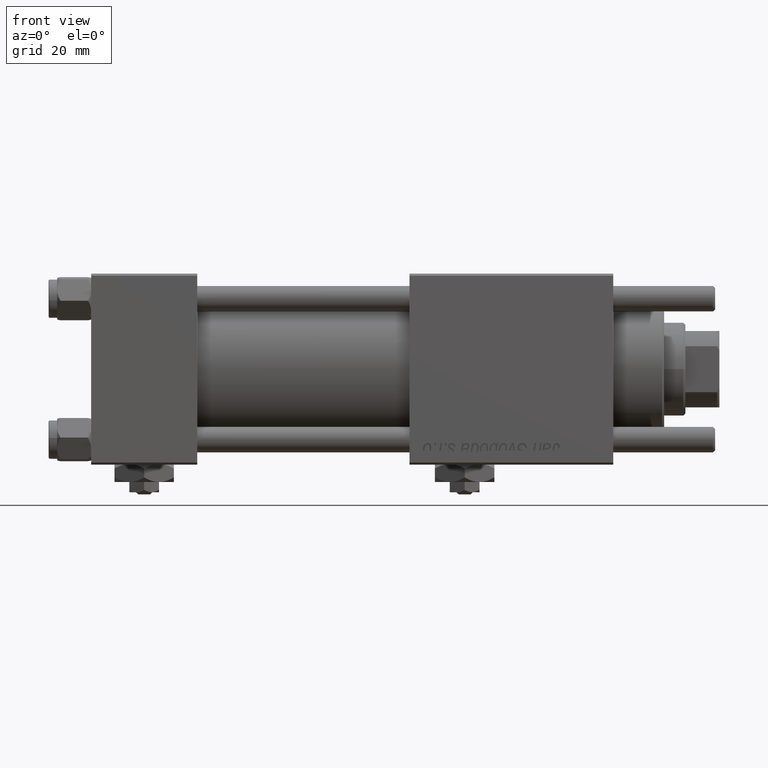
[diagram: clean part render]
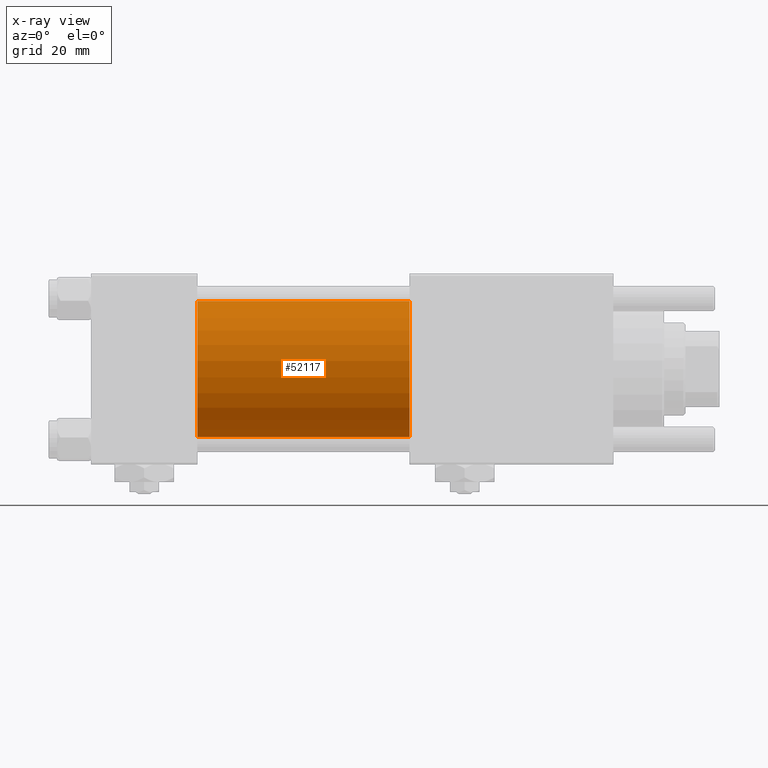
[diagram: x-ray — body ghosted, one internal face saturated and labeled with its STEP entity id]
A machine part, front view, then the same camera in x-ray: the body is ghosted and one INTERNAL B-rep face — a face not visible from any outside direction — is saturated and labeled: STEP entity #52117.
In plain terms, the highlighted cylindrical surface (partial cylindrical patch) has radius 16 mm, axis along (-1, -0, -0).
Its self-contained STEP definition (entity closure, byte-faithful):
#2243 = ORIENTED_EDGE ( 'NONE', *, *, #44510, .F. ) ;
#3121 = CARTESIAN_POINT ( 'NONE',  ( 25.00000000000000000, -2.602085213965210642E-15, 0.000000000000000000 ) ) ;
#4327 = CARTESIAN_POINT ( 'NONE',  ( 25.00000000000000000, -2.602085213965210642E-15, 16.00000000000000000 ) ) ;
#6803 = EDGE_CURVE ( 'NONE', #45159, #21399, #19627, .T. ) ;
#7049 = DIRECTION ( 'NONE',  ( -1.000000000000000000, -0.000000000000000000, -0.000000000000000000 ) ) ;
#7896 = EDGE_CURVE ( 'NONE', #21399, #38455, #53530, .T. ) ;
#13753 = FACE_OUTER_BOUND ( 'NONE', #20773, .T. ) ;
#14348 = DIRECTION ( 'NONE',  ( 0.000000000000000000, 0.000000000000000000, 1.000000000000000000 ) ) ;
#14875 = VECTOR ( 'NONE', #22309, 1000.000000000000000 ) ;
#15220 = VECTOR ( 'NONE', #7049, 1000.000000000000000 ) ;
#17934 = VERTEX_POINT ( 'NONE', #4327 ) ;
#19627 = CIRCLE ( 'NONE', #35907, 16.00000000000000000 ) ;
#20773 = EDGE_LOOP ( 'NONE', ( #51021, #40003, #29944, #2243 ) ) ;
#21399 = VERTEX_POINT ( 'NONE', #22619 ) ;
#22309 = DIRECTION ( 'NONE',  ( -1.000000000000000000, -0.000000000000000000, -0.000000000000000000 ) ) ;
#22619 = CARTESIAN_POINT ( 'NONE',  ( 75.00000000000001421, -6.426503353294456087E-16, -16.00000000000000000 ) ) ;
#23708 = DIRECTION ( 'NONE',  ( 1.000000000000000000, 0.000000000000000000, 0.000000000000000000 ) ) ;
#24325 = CARTESIAN_POINT ( 'NONE',  ( 75.00000000000001421, -2.602085213965210642E-15, 16.00000000000000000 ) ) ;
#29944 = ORIENTED_EDGE ( 'NONE', *, *, #50846, .F. ) ;
#31373 = DIRECTION ( 'NONE',  ( 1.000000000000000000, 0.000000000000000000, 0.000000000000000000 ) ) ;
#31662 = DIRECTION ( 'NONE',  ( 0.000000000000000000, 0.000000000000000000, -1.000000000000000000 ) ) ;
#32183 = DIRECTION ( 'NONE',  ( -1.000000000000000000, -0.000000000000000000, -0.000000000000000000 ) ) ;
#35907 = AXIS2_PLACEMENT_3D ( 'NONE', #58828, #23708, #54638 ) ;
#36221 = AXIS2_PLACEMENT_3D ( 'NONE', #41982, #32183, #14348 ) ;
#38455 = VERTEX_POINT ( 'NONE', #42684 ) ;
#38579 = LINE ( 'NONE', #24325, #15220 ) ;
#39489 = CARTESIAN_POINT ( 'NONE',  ( 75.00000000000001421, -2.602085213965210642E-15, 16.00000000000000000 ) ) ;
#40003 = ORIENTED_EDGE ( 'NONE', *, *, #7896, .T. ) ;
#41982 = CARTESIAN_POINT ( 'NONE',  ( 75.00000000000001421, -2.602085213965210642E-15, 0.000000000000000000 ) ) ;
#42684 = CARTESIAN_POINT ( 'NONE',  ( 25.00000000000000000, -6.426503353294456087E-16, -16.00000000000000000 ) ) ;
#44510 = EDGE_CURVE ( 'NONE', #45159, #17934, #38579, .T. ) ;
#45159 = VERTEX_POINT ( 'NONE', #39489 ) ;
#46631 = AXIS2_PLACEMENT_3D ( 'NONE', #3121, #31373, #31662 ) ;
#50846 = EDGE_CURVE ( 'NONE', #17934, #38455, #52323, .T. ) ;
#51021 = ORIENTED_EDGE ( 'NONE', *, *, #6803, .T. ) ;
#52117 = ADVANCED_FACE ( 'NONE', ( #13753 ), #55658, .F. ) ;
#52323 = CIRCLE ( 'NONE', #46631, 16.00000000000000000 ) ;
#53530 = LINE ( 'NONE', #57710, #14875 ) ;
#54638 = DIRECTION ( 'NONE',  ( 0.000000000000000000, 0.000000000000000000, -1.000000000000000000 ) ) ;
#55658 = CYLINDRICAL_SURFACE ( 'NONE', #36221, 16.00000000000000000 ) ;
#57710 = CARTESIAN_POINT ( 'NONE',  ( 75.00000000000001421, -6.426503353294456087E-16, -16.00000000000000000 ) ) ;
#58828 = CARTESIAN_POINT ( 'NONE',  ( 75.00000000000001421, -2.602085213965210642E-15, 0.000000000000000000 ) ) ;